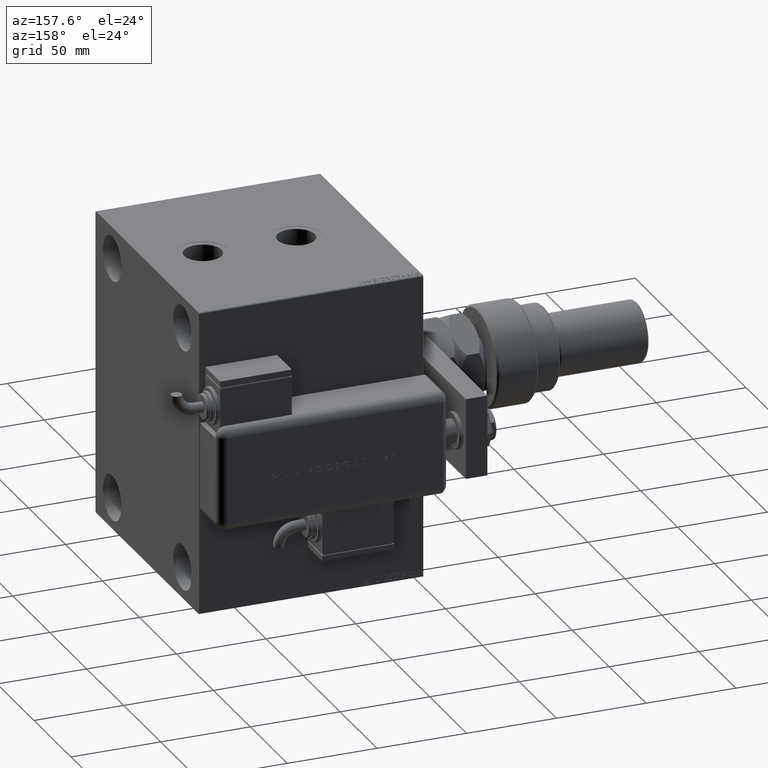
[diagram: clean part render]
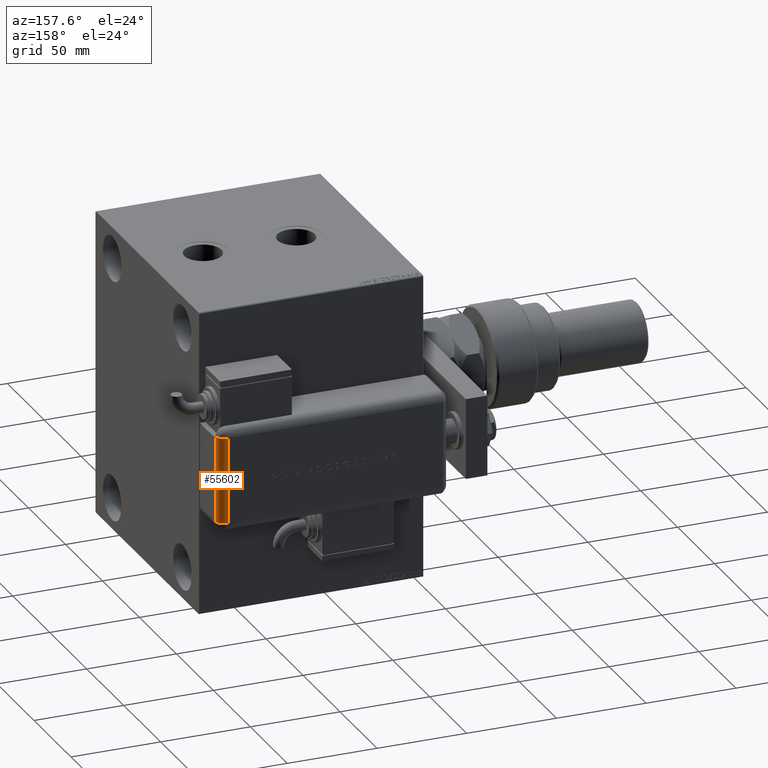
[diagram: same view with one face highlighted and labeled with its STEP entity id]
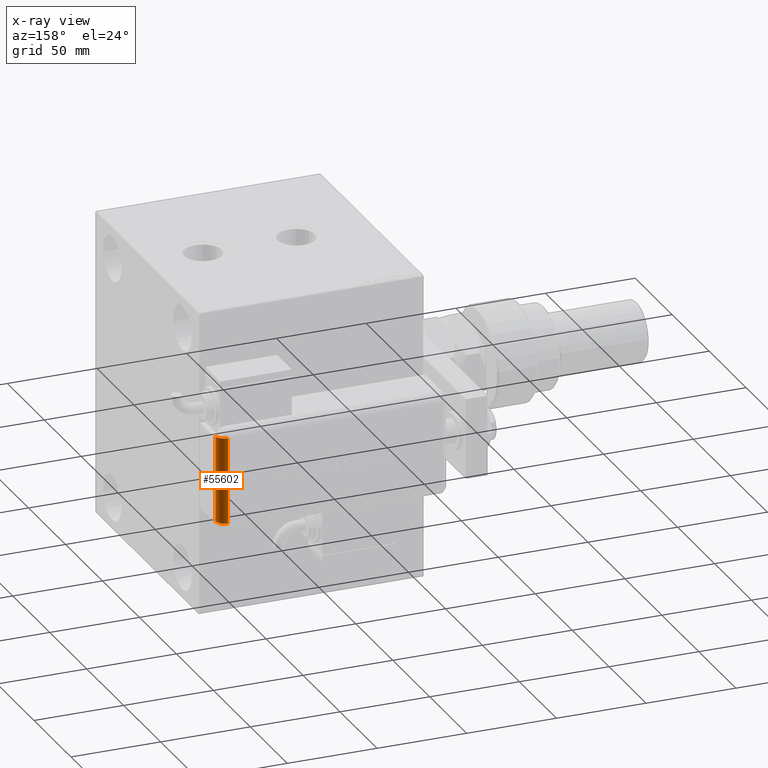
[diagram: x-ray of the same camera — body ghosted, the highlighted face saturated]
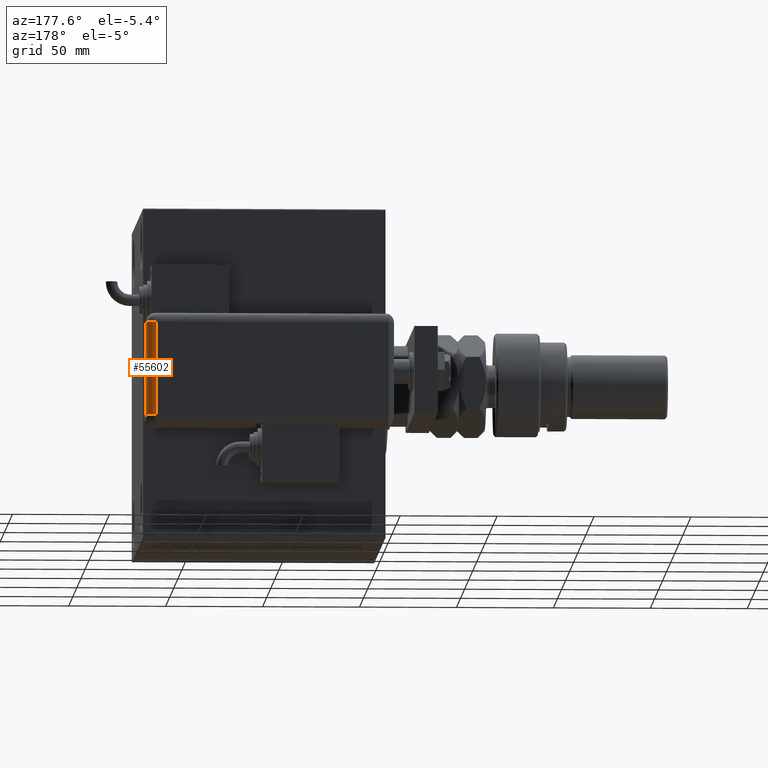
[diagram: same view with one face highlighted and labeled with its STEP entity id]
A machine part, auxiliary view. The second image highlights one B-rep face of the part: STEP entity #55602.
The next image is the same camera in x-ray: the body ghosted, the highlighted face saturated — about 0% of this face is hidden behind the body in this view.
A second angle (auxiliary view) of the same face is appended — the face is thin or edge-on in the first view.
In plain terms, the highlighted cylindrical surface (edge-blend (fillet) strip) has radius 5 mm, axis along (0, 0, 1).
Its self-contained STEP definition (entity closure, byte-faithful):
#142 = VERTEX_POINT ( 'NONE', #27628 ) ;
#398 = CARTESIAN_POINT ( 'NONE',  ( 23.99999999999999289, 25.79999999999998295, 5.000000000000004441 ) ) ;
#1279 = VERTEX_POINT ( 'NONE', #38317 ) ;
#3739 = EDGE_LOOP ( 'NONE', ( #62505, #41994, #24504, #45396, #19140, #25721 ) ) ;
#6271 = DIRECTION ( 'NONE',  ( 0.000000000000000000, 1.526556658859590243E-14, -1.000000000000000000 ) ) ;
#6781 = DIRECTION ( 'NONE',  ( 1.000000000000000000, -0.000000000000000000, -0.000000000000000000 ) ) ;
#8517 = CARTESIAN_POINT ( 'NONE',  ( 23.99999999999999289, 21.00000000000000000, 0.004001601281283882067 ) ) ;
#10695 = CARTESIAN_POINT ( 'NONE',  ( 23.00000000000000000, 20.79999999999998295, 1.734723475976807094E-15 ) ) ;
#11522 = CIRCLE ( 'NONE', #23644, 5.000000000000000000 ) ;
#16369 = EDGE_CURVE ( 'NONE', #48447, #1279, #29485, .T. ) ;
#16528 = EDGE_CURVE ( 'NONE', #48899, #53556, #33850, .T. ) ;
#17767 = EDGE_CURVE ( 'NONE', #53556, #48447, #36713, .T. ) ;
#18413 = VECTOR ( 'NONE', #48828, 1000.000000000000000 ) ;
#18932 = CARTESIAN_POINT ( 'NONE',  ( -28.99999999999999645, 20.79999999999998295, 5.000000000000004441 ) ) ;
#19140 = ORIENTED_EDGE ( 'NONE', *, *, #16369, .F. ) ;
#19559 = FACE_OUTER_BOUND ( 'NONE', #3739, .T. ) ;
#19923 = CARTESIAN_POINT ( 'NONE',  ( 23.00000000000000000, 20.79999999999998295, 5.000000000000004441 ) ) ;
#20989 = DIRECTION ( 'NONE',  ( 1.000000000000000000, -0.000000000000000000, 0.000000000000000000 ) ) ;
#22549 = VECTOR ( 'NONE', #6781, 1000.000000000000000 ) ;
#23644 = AXIS2_PLACEMENT_3D ( 'NONE', #44794, #26418, #31489 ) ;
#23680 = CYLINDRICAL_SURFACE ( 'NONE', #36801, 5.000000000000000000 ) ;
#24504 = ORIENTED_EDGE ( 'NONE', *, *, #44352, .F. ) ;
#25406 = EDGE_CURVE ( 'NONE', #48899, #54647, #30975, .T. ) ;
#25721 = ORIENTED_EDGE ( 'NONE', *, *, #17767, .F. ) ;
#26054 = DIRECTION ( 'NONE',  ( 0.000000000000000000, 0.000000000000000000, -1.000000000000000000 ) ) ;
#26418 = DIRECTION ( 'NONE',  ( 1.000000000000000000, -0.000000000000000000, 0.000000000000000000 ) ) ;
#27628 = CARTESIAN_POINT ( 'NONE',  ( -23.99999999999999645, 20.79999999999998295, 0.000000000000000000 ) ) ;
#28482 = DIRECTION ( 'NONE',  ( 1.000000000000000000, 0.000000000000000000, 0.000000000000000000 ) ) ;
#29485 = LINE ( 'NONE', #34852, #18413 ) ;
#30975 = CIRCLE ( 'NONE', #46187, 5.000000000000000000 ) ;
#31489 = DIRECTION ( 'NONE',  ( 0.000000000000000000, 0.000000000000000000, -1.000000000000000000 ) ) ;
#33678 = AXIS2_PLACEMENT_3D ( 'NONE', #45074, #20989, #26054 ) ;
#33850 = LINE ( 'NONE', #52556, #43755 ) ;
#34690 = LINE ( 'NONE', #39451, #22549 ) ;
#34852 = CARTESIAN_POINT ( 'NONE',  ( -23.99999999999999645, 25.79999999999998295, 5.000000000000004441 ) ) ;
#36713 = CIRCLE ( 'NONE', #33678, 5.000000000000000000 ) ;
#36801 = AXIS2_PLACEMENT_3D ( 'NONE', #18932, #48099, #38894 ) ;
#37717 = CARTESIAN_POINT ( 'NONE',  ( 23.00000000000000000, 21.00000000000000000, 0.004001601281286050471 ) ) ;
#38317 = CARTESIAN_POINT ( 'NONE',  ( -23.99999999999999645, 25.79999999999998295, 5.000000000000004441 ) ) ;
#38894 = DIRECTION ( 'NONE',  ( 0.000000000000000000, 0.000000000000000000, -1.000000000000000000 ) ) ;
#39451 = CARTESIAN_POINT ( 'NONE',  ( 23.99999999999999289, 20.79999999999998295, 0.000000000000000000 ) ) ;
#41994 = ORIENTED_EDGE ( 'NONE', *, *, #25406, .T. ) ;
#43755 = VECTOR ( 'NONE', #28482, 1000.000000000000000 ) ;
#44352 = EDGE_CURVE ( 'NONE', #142, #54647, #34690, .T. ) ;
#44632 = DIRECTION ( 'NONE',  ( -1.000000000000000000, -0.000000000000000000, 0.000000000000000000 ) ) ;
#44794 = CARTESIAN_POINT ( 'NONE',  ( -23.99999999999999645, 20.79999999999998295, 5.000000000000002665 ) ) ;
#45074 = CARTESIAN_POINT ( 'NONE',  ( 23.99999999999999289, 20.79999999999998295, 5.000000000000000000 ) ) ;
#45396 = ORIENTED_EDGE ( 'NONE', *, *, #57393, .T. ) ;
#46187 = AXIS2_PLACEMENT_3D ( 'NONE', #19923, #44632, #6271 ) ;
#48099 = DIRECTION ( 'NONE',  ( 1.000000000000000000, 0.000000000000000000, 0.000000000000000000 ) ) ;
#48447 = VERTEX_POINT ( 'NONE', #398 ) ;
#48828 = DIRECTION ( 'NONE',  ( -1.000000000000000000, 0.000000000000000000, 0.000000000000000000 ) ) ;
#48899 = VERTEX_POINT ( 'NONE', #37717 ) ;
#52556 = CARTESIAN_POINT ( 'NONE',  ( -28.99999999999999645, 21.00000000000000000, 0.004001601281286050471 ) ) ;
#53556 = VERTEX_POINT ( 'NONE', #8517 ) ;
#54647 = VERTEX_POINT ( 'NONE', #10695 ) ;
#55602 = ADVANCED_FACE ( 'NONE', ( #19559 ), #23680, .T. ) ;
#57393 = EDGE_CURVE ( 'NONE', #142, #1279, #11522, .T. ) ;
#62505 = ORIENTED_EDGE ( 'NONE', *, *, #16528, .F. ) ;